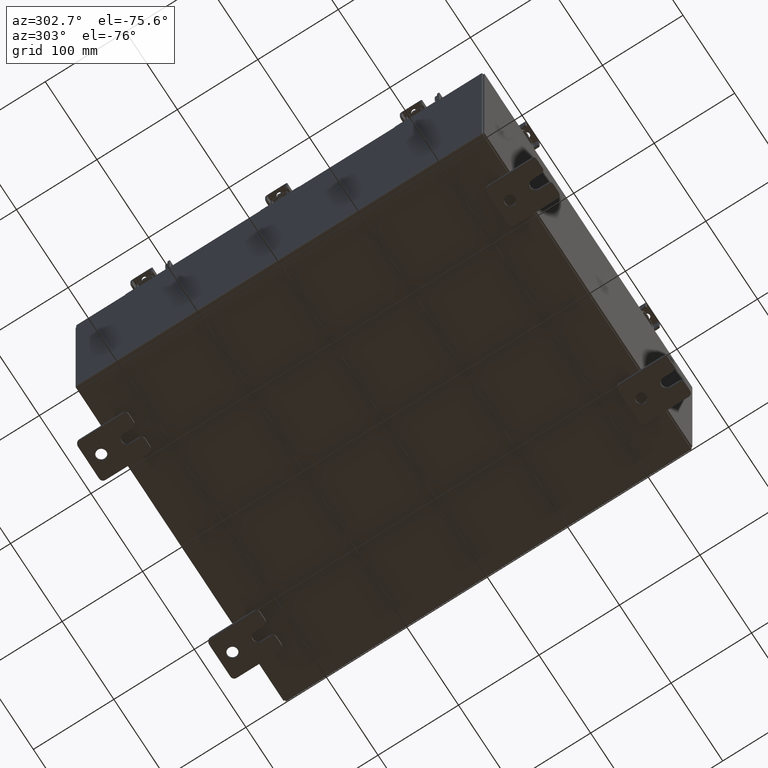
[diagram: clean part render]
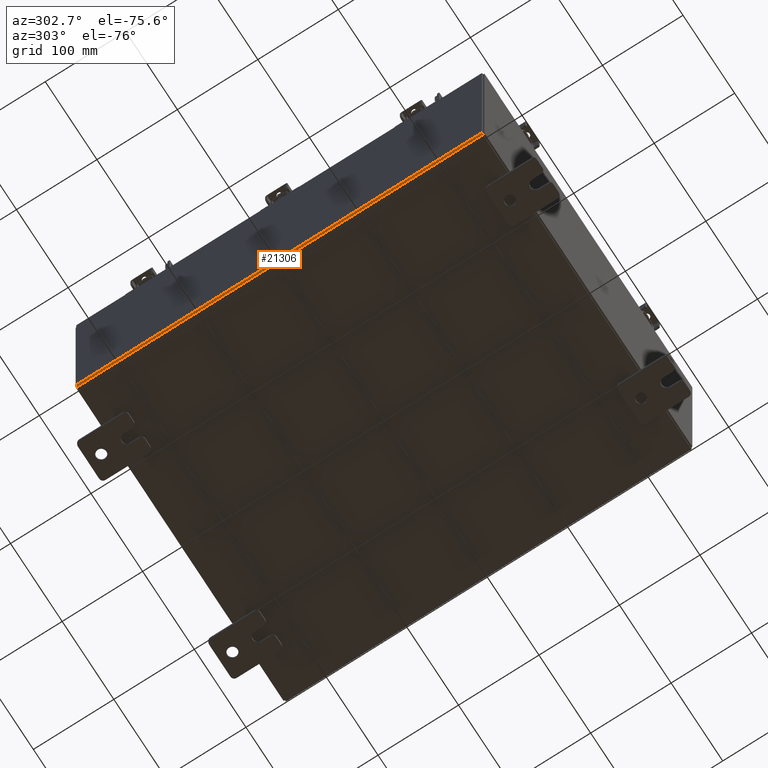
[diagram: same view with one face highlighted and labeled with its STEP entity id]
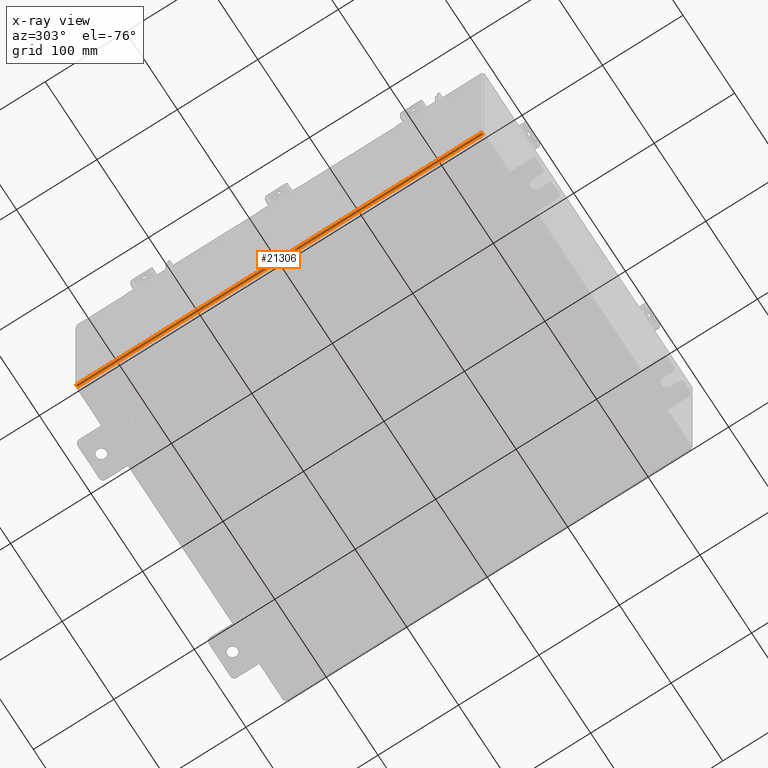
[diagram: x-ray of the same camera — body ghosted, the highlighted face saturated]
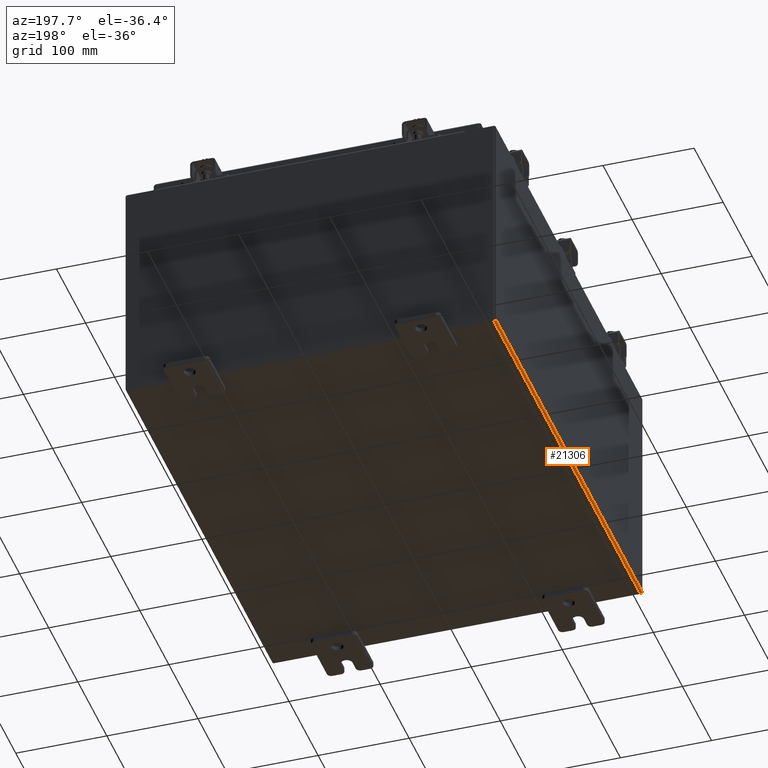
[diagram: same view with one face highlighted and labeled with its STEP entity id]
A machine part, auxiliary view. The second image highlights one B-rep face of the part: STEP entity #21306.
The next image is the same camera in x-ray: the body ghosted, the highlighted face saturated — about 0% of this face is hidden behind the body in this view.
A second angle (auxiliary view) of the same face is appended — the face is thin or edge-on in the first view.
In plain terms, the highlighted cylindrical surface (edge-blend (fillet) strip) has radius 2.2276 mm, axis along (0, -1, 0).
Its self-contained STEP definition (entity closure, byte-faithful):
#300 = CARTESIAN_POINT ( 'NONE',  ( -7.912299999999997400, -9.925300000000001800, 0.01300000000000015200 ) ) ;
#1757 = CARTESIAN_POINT ( 'NONE',  ( -7.912299999999997400, 9.925299999999998200, 0.01300000000000015200 ) ) ;
#3453 = DIRECTION ( 'NONE',  ( 0.0000000000000000000, 0.0000000000000000000, -1.000000000000000000 ) ) ;
#3490 = FACE_OUTER_BOUND ( 'NONE', #18354, .T. ) ;
#3497 = CIRCLE ( 'NONE', #11535, 0.08770000000000009700 ) ;
#5239 = CARTESIAN_POINT ( 'NONE',  ( -7.999999999999997300, -9.925300000000000000, 0.01299999999999984700 ) ) ;
#6125 = ORIENTED_EDGE ( 'NONE', *, *, #15347, .T. ) ;
#6525 = EDGE_CURVE ( 'NONE', #7129, #19883, #3497, .T. ) ;
#6532 = CARTESIAN_POINT ( 'NONE',  ( -7.999999999999997300, 9.925299999999998200, 0.01299999999999984300 ) ) ;
#7129 = VERTEX_POINT ( 'NONE', #5239 ) ;
#7367 = EDGE_CURVE ( 'NONE', #19883, #16391, #21177, .T. ) ;
#7487 = DIRECTION ( 'NONE',  ( -0.0000000000000000000, 1.000000000000000000, -0.0000000000000000000 ) ) ;
#9277 = AXIS2_PLACEMENT_3D ( 'NONE', #1757, #13791, #3453 ) ;
#9576 = DIRECTION ( 'NONE',  ( 0.0000000000000000000, -1.000000000000000000, 0.0000000000000000000 ) ) ;
#9740 = CARTESIAN_POINT ( 'NONE',  ( -7.912299999999997400, -9.925300000000000000, -0.07469999999999994700 ) ) ;
#10402 = LINE ( 'NONE', #14142, #18642 ) ;
#11134 = EDGE_CURVE ( 'NONE', #16391, #15085, #19355, .T. ) ;
#11279 = VECTOR ( 'NONE', #7487, 39.37007874015748100 ) ;
#11535 = AXIS2_PLACEMENT_3D ( 'NONE', #20077, #9576, #21834 ) ;
#12119 = CYLINDRICAL_SURFACE ( 'NONE', #21878, 0.08770000000000026400 ) ;
#12336 = DIRECTION ( 'NONE',  ( 0.0000000000000000000, -1.000000000000000000, 0.0000000000000000000 ) ) ;
#13057 = ORIENTED_EDGE ( 'NONE', *, *, #6525, .F. ) ;
#13791 = DIRECTION ( 'NONE',  ( -0.0000000000000000000, 1.000000000000000000, -0.0000000000000000000 ) ) ;
#14142 = CARTESIAN_POINT ( 'NONE',  ( -7.999999999999997300, 9.925299999999998200, 0.01299999999999984700 ) ) ;
#15085 = VERTEX_POINT ( 'NONE', #6532 ) ;
#15347 = EDGE_CURVE ( 'NONE', #7129, #15085, #10402, .T. ) ;
#15772 = DIRECTION ( 'NONE',  ( -1.000000000000000000, 0.0000000000000000000, -3.528701887483225300E-015 ) ) ;
#15906 = DIRECTION ( 'NONE',  ( -0.0000000000000000000, 1.000000000000000000, -0.0000000000000000000 ) ) ;
#16164 = CARTESIAN_POINT ( 'NONE',  ( -7.912299999999997400, -9.925300000000001800, -0.07469999999999994700 ) ) ;
#16391 = VERTEX_POINT ( 'NONE', #18074 ) ;
#18074 = CARTESIAN_POINT ( 'NONE',  ( -7.912299999999997400, 9.925299999999998200, -0.07470000000000000300 ) ) ;
#18354 = EDGE_LOOP ( 'NONE', ( #19168, #13057, #6125, #21824 ) ) ;
#18642 = VECTOR ( 'NONE', #15906, 39.37007874015748100 ) ;
#19168 = ORIENTED_EDGE ( 'NONE', *, *, #7367, .F. ) ;
#19355 = CIRCLE ( 'NONE', #9277, 0.08770000000000009700 ) ;
#19883 = VERTEX_POINT ( 'NONE', #9740 ) ;
#20077 = CARTESIAN_POINT ( 'NONE',  ( -7.912299999999997400, -9.925300000000000000, 0.01300000000000015200 ) ) ;
#21177 = LINE ( 'NONE', #16164, #11279 ) ;
#21306 = ADVANCED_FACE ( 'NONE', ( #3490 ), #12119, .T. ) ;
#21824 = ORIENTED_EDGE ( 'NONE', *, *, #11134, .F. ) ;
#21834 = DIRECTION ( 'NONE',  ( 0.0000000000000000000, 0.0000000000000000000, -1.000000000000000000 ) ) ;
#21878 = AXIS2_PLACEMENT_3D ( 'NONE', #300, #12336, #15772 ) ;